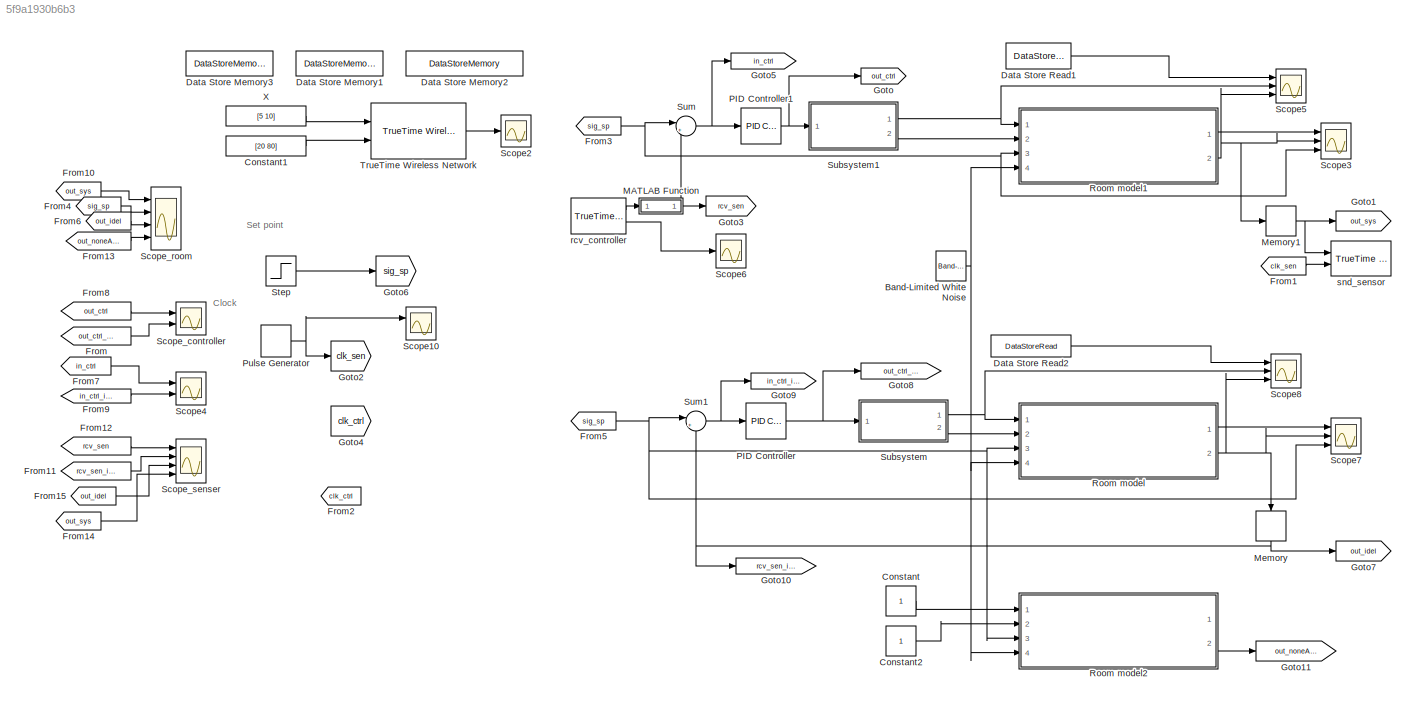
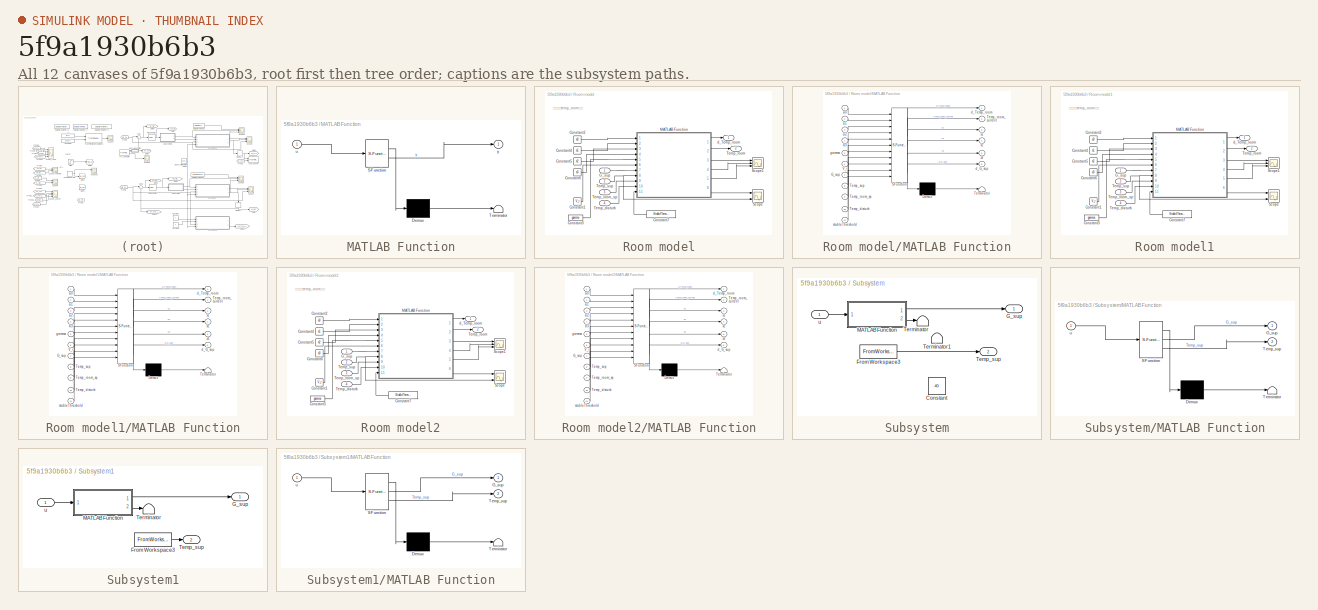
[diagram: thumbnail index - all 12 canvases of the model, root first then tree order]
MODEL slx_5f9a1930b6b3
KIND model
CONFIG AbsTol = auto
CONFIG EnableMultiTasking = off
CONFIG FixedStep = auto
CONFIG MaxStep = auto
CONFIG MinStep = auto
CONFIG RelTol = 1e-3
CONFIG SampleTimeConstraint = Unconstrained
CONFIG SolverName = VariableStepAuto
CONFIG StartTime = 0.0
CONFIG StopTime = 100
WORKSPACE source: mxarray member
WORKSPACE G_sup_tsp: Simulink.Signal (value not decoded)
WORKSPACE G_sup_tsp_ideal: Simulink.Signal (value not decoded)
WORKSPACE G_sup_tsp_noneAct: Simulink.Signal (value not decoded)
BLOCK [Reference] Band-Limited White Noise  REF=simulink/Sources/Band-Limited
White Noise
  Ports = [0, 1]
  SourceBlock = simulink/Sources/Band-Limited\nWhite Noise
  SourceProductBaseCode = SL
  SourceType = Band-Limited White Noise.
BLOCK [Constant] Constant
BLOCK [Constant] Constant1
  Value = [20 80]
  VectorParams1D = off
BLOCK [Constant] Constant2
BLOCK [DataStoreMemory] Data Store Memory1
  DataStoreName = G_sup_tsp_ideal
  InitialValue = 175
  OutDataTypeStr = double
  ReadBeforeWriteMsg = warning
  ShowAdditionalParam = off
  SignalType = real
  WriteAfterReadMsg = warning
  WriteAfterWriteMsg = warning
BLOCK [DataStoreMemory] Data Store Memory2
  DataStoreName = G_sup_tsp_noneAct
  InitialValue = 175
  OutDataTypeStr = double
  ReadBeforeWriteMsg = warning
  ShowAdditionalParam = off
  SignalType = real
  WriteAfterReadMsg = warning
  WriteAfterWriteMsg = warning
BLOCK [DataStoreMemory] Data Store Memory3
  DataStoreName = G_sup_tsp
  InitialValue = 175
  OutDataTypeStr = double
  ReadBeforeWriteMsg = warning
  ShowAdditionalParam = off
  SignalType = real
  WriteAfterReadMsg = warning
  WriteAfterWriteMsg = warning
BLOCK [DataStoreRead] Data Store Read1
  DataStoreName = G_sup_tsp
  Ports = [0, 1]
BLOCK [DataStoreRead] Data Store Read2
  DataStoreName = G_sup_tsp_ideal
  Ports = [0, 1]
BLOCK [From] From
  GotoTag = out_ctrl_ideal
BLOCK [From] From1
  GotoTag = clk_sen
BLOCK [From] From10
  GotoTag = out_sys
BLOCK [From] From11
  GotoTag = rcv_sen_ideal
BLOCK [From] From12
  GotoTag = rcv_sen
BLOCK [From] From13
  GotoTag = out_noneAct
BLOCK [From] From14
  GotoTag = out_sys
BLOCK [From] From15
  GotoTag = out_idel
BLOCK [From] From2
  GotoTag = clk_ctrl
BLOCK [From] From3
  GotoTag = sig_sp
BLOCK [From] From4
  GotoTag = sig_sp
BLOCK [From] From5
  GotoTag = sig_sp
BLOCK [From] From6
  GotoTag = out_idel
BLOCK [From] From7
  GotoTag = in_ctrl
BLOCK [From] From8
  GotoTag = out_ctrl
BLOCK [From] From9
  GotoTag = in_ctrl_idea
BLOCK [Goto] Goto
  GotoTag = out_ctrl
BLOCK [Goto] Goto1
  GotoTag = out_sys
BLOCK [Goto] Goto10
  GotoTag = rcv_sen_ideal
BLOCK [Goto] Goto11
  GotoTag = out_noneAct
BLOCK [Goto] Goto2
  GotoTag = clk_sen
BLOCK [Goto] Goto3
  GotoTag = rcv_sen
BLOCK [Goto] Goto4
  GotoTag = clk_ctrl
BLOCK [Goto] Goto5
  GotoTag = in_ctrl
BLOCK [Goto] Goto6
  GotoTag = sig_sp
BLOCK [Goto] Goto7
  GotoTag = out_idel
BLOCK [Goto] Goto8
  GotoTag = out_ctrl_ideal
BLOCK [Goto] Goto9
  GotoTag = in_ctrl_idea
BLOCK [SubSystem] MATLAB Function
  ErrorFcn = Stateflow.Translate.translate
  PermitHierarchicalResolution = ExplicitOnly
  Ports = [1, 1]
  RequestExecContextInheritance = off
  SFBlockType = MATLAB Function
  TreatAsAtomicUnit = on
BLOCK [Demux] MATLAB Function/ Demux 
  Outputs = 1
  Ports = [1, 1]
BLOCK [S-Function] MATLAB Function/ SFunction 
  EnableBusSupport = on
  FunctionName = sf_sfun
  PortCounts = [1 2]
  Ports = [1, 2]
  SFcnIsStateOwnerBlock = off
  SFunctionDeploymentMode = off
  Tag = Stateflow S-Function 5
BLOCK [Terminator] MATLAB Function/ Terminator 
BLOCK [Inport] MATLAB Function/u
BLOCK [Outport] MATLAB Function/y
BLOCK [Memory] Memory
  InitialCondition = 21
  NameLocation = left
BLOCK [Memory] Memory1
  InitialCondition = 21
BLOCK [Reference] PID Controller  REF=pid_lib/PID Controller
  Ports = [1, 1]
  SourceBlock = pid_lib/PID Controller
  SourceProductBaseCode = SL
  SourceType = PID 1dof
BLOCK [Reference] PID Controller1  REF=pid_lib/PID Controller
  Ports = [1, 1]
  SourceBlock = pid_lib/PID Controller
  SourceProductBaseCode = SL
  SourceType = PID 1dof
BLOCK [DiscretePulseGenerator] Pulse Generator
  Period = 5
  Ports = [0, 1]
BLOCK [SubSystem] Room model
  Ports = [4, 2]
  RequestExecContextInheritance = off
BLOCK [Constant] Room model/Constant1
  Value = V_r
BLOCK [Constant] Room model/Constant2
  Value = a0
BLOCK [Constant] Room model/Constant3
  Value = gamma
BLOCK [Constant] Room model/Constant4
  Value = a1
BLOCK [Constant] Room model/Constant5
  Value = a2
BLOCK [Constant] Room model/Constant6
  Value = a3
BLOCK [Constant] Room model/Constant7
  Value = StableThreshold
BLOCK [Inport] Room model/G_sup
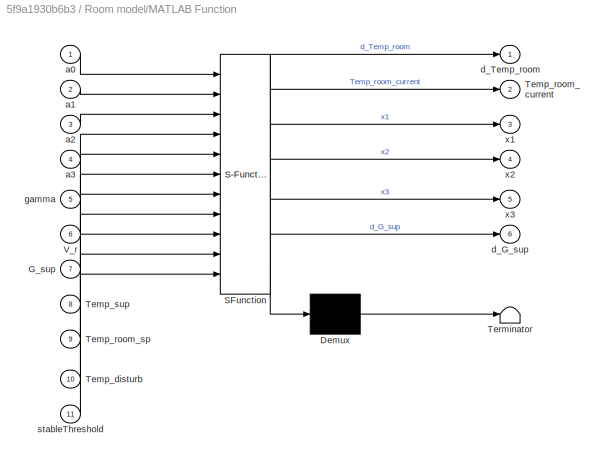
BLOCK [SubSystem] Room model/MATLAB Function
  ErrorFcn = Stateflow.Translate.translate
  PermitHierarchicalResolution = ExplicitOnly
  Ports = [11, 6]
  RequestExecContextInheritance = off
  SFBlockType = MATLAB Function
  TreatAsAtomicUnit = on
BLOCK [Demux] Room model/MATLAB Function/ Demux 
  Outputs = 1
  Ports = [1, 1]
BLOCK [S-Function] Room model/MATLAB Function/ SFunction 
  EnableBusSupport = on
  FunctionName = sf_sfun
  PortCounts = [11 7]
  Ports = [11, 7]
  SFcnIsStateOwnerBlock = off
  SFunctionDeploymentMode = off
  Tag = Stateflow S-Function 3
BLOCK [Terminator] Room model/MATLAB Function/ Terminator 
BLOCK [Inport] Room model/MATLAB Function/G_sup
  Port = 7
BLOCK [Inport] Room model/MATLAB Function/Temp_disturb
  Port = 10
BLOCK [Outport] Room model/MATLAB Function/Temp_room_current
  Port = 2
BLOCK [Inport] Room model/MATLAB Function/Temp_room_sp
  Port = 9
BLOCK [Inport] Room model/MATLAB Function/Temp_sup
  Port = 8
BLOCK [Inport] Room model/MATLAB Function/V_r
  Port = 6
BLOCK [Inport] Room model/MATLAB Function/a0
BLOCK [Inport] Room model/MATLAB Function/a1
  Port = 2
BLOCK [Inport] Room model/MATLAB Function/a2
  Port = 3
BLOCK [Inport] Room model/MATLAB Function/a3
  Port = 4
BLOCK [Outport] Room model/MATLAB Function/d_G_sup
  Port = 6
BLOCK [Outport] Room model/MATLAB Function/d_Temp_room
BLOCK [Inport] Room model/MATLAB Function/gamma
  Port = 5
BLOCK [Inport] Room model/MATLAB Function/stableThreshold
  Port = 11
BLOCK [Outport] Room model/MATLAB Function/x1
  Port = 3
BLOCK [Outport] Room model/MATLAB Function/x2
  Port = 4
BLOCK [Outport] Room model/MATLAB Function/x3
  Port = 5
BLOCK [Scope] Room model/Scope
  Floating = off
  NumInputPorts = 3
  Ports = [3]
  ScopeSpecificationString = Simulink.scopes.TimeScopeBlockCfg('CurrentConfiguration', extmgr.ConfigurationSet(extmgr.Configuration('Core','General UI',true),extmgr.Configuration('Core','Source UI',true),extmgr.Configuration('Sources','WiredSimulink',true,'DataLoggingVariableName','ScopeData2'),extmgr.Configuration('Visuals','Time Domain',true,'SerializedDisplays',{struct('MinYLimReal','-336.25','MaxYLimReal','3026.25','YLabe...<+2837ch>  <repeated x3 — deduplicated; at blocks: Scope>
BLOCK [Scope] Room model/Scope1
  Floating = off
  NumInputPorts = 3
  Ports = [3]
  ScopeSpecificationString = Simulink.scopes.TimeScopeBlockCfg('CurrentConfiguration', extmgr.ConfigurationSet(extmgr.Configuration('Core','General UI',true),extmgr.Configuration('Core','Source UI',true),extmgr.Configuration('Sources','WiredSimulink',true,'DataLoggingVariableName','ScopeData3'),extmgr.Configuration('Visuals','Time Domain',true,'SerializedDisplays',{struct('MinYLimReal','-5.69038','MaxYLimReal','1.98649','YLab...<+3174ch>  <repeated x3 — deduplicated; at blocks: Scope1>
BLOCK [Inport] Room model/Temp_disturb
  Port = 4
BLOCK [Outport] Room model/Temp_room
  Port = 2
BLOCK [Inport] Room model/Temp_room_sp
  Port = 3
BLOCK [Inport] Room model/Temp_sup
  Port = 2
BLOCK [Outport] Room model/d_Temp_room
BLOCK [SubSystem] Room model1
  Ports = [4, 2]
  RequestExecContextInheritance = off
BLOCK [Constant] Room model1/Constant1
  Value = V_r
BLOCK [Constant] Room model1/Constant2
  Value = a0
BLOCK [Constant] Room model1/Constant3
  Value = gamma
BLOCK [Constant] Room model1/Constant4
  Value = a1
BLOCK [Constant] Room model1/Constant5
  Value = a2
BLOCK [Constant] Room model1/Constant6
  Value = a3
BLOCK [Constant] Room model1/Constant7
  Value = StableThreshold
BLOCK [Inport] Room model1/G_sup
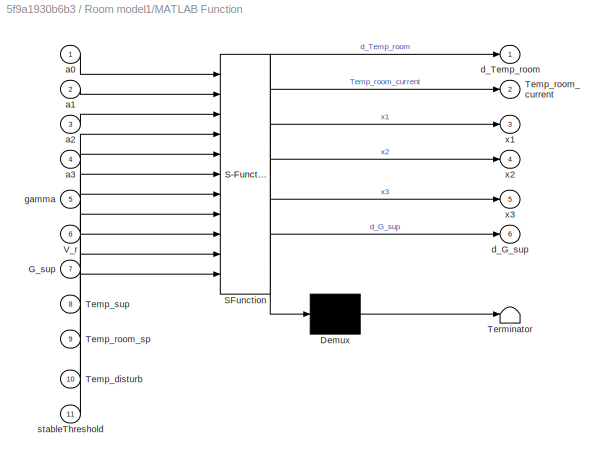
BLOCK [SubSystem] Room model1/MATLAB Function
  ErrorFcn = Stateflow.Translate.translate
  PermitHierarchicalResolution = ExplicitOnly
  Ports = [11, 6]
  RequestExecContextInheritance = off
  SFBlockType = MATLAB Function
  TreatAsAtomicUnit = on
BLOCK [Demux] Room model1/MATLAB Function/ Demux 
  Outputs = 1
  Ports = [1, 1]
BLOCK [S-Function] Room model1/MATLAB Function/ SFunction 
  EnableBusSupport = on
  FunctionName = sf_sfun
  PortCounts = [11 7]
  Ports = [11, 7]
  SFcnIsStateOwnerBlock = off
  SFunctionDeploymentMode = off
  Tag = Stateflow S-Function 2
BLOCK [Terminator] Room model1/MATLAB Function/ Terminator 
BLOCK [Inport] Room model1/MATLAB Function/G_sup
  Port = 7
BLOCK [Inport] Room model1/MATLAB Function/Temp_disturb
  Port = 10
BLOCK [Outport] Room model1/MATLAB Function/Temp_room_current
  Port = 2
BLOCK [Inport] Room model1/MATLAB Function/Temp_room_sp
  Port = 9
BLOCK [Inport] Room model1/MATLAB Function/Temp_sup
  Port = 8
BLOCK [Inport] Room model1/MATLAB Function/V_r
  Port = 6
BLOCK [Inport] Room model1/MATLAB Function/a0
BLOCK [Inport] Room model1/MATLAB Function/a1
  Port = 2
BLOCK [Inport] Room model1/MATLAB Function/a2
  Port = 3
BLOCK [Inport] Room model1/MATLAB Function/a3
  Port = 4
BLOCK [Outport] Room model1/MATLAB Function/d_G_sup
  Port = 6
BLOCK [Outport] Room model1/MATLAB Function/d_Temp_room
BLOCK [Inport] Room model1/MATLAB Function/gamma
  Port = 5
BLOCK [Inport] Room model1/MATLAB Function/stableThreshold
  Port = 11
BLOCK [Outport] Room model1/MATLAB Function/x1
  Port = 3
BLOCK [Outport] Room model1/MATLAB Function/x2
  Port = 4
BLOCK [Outport] Room model1/MATLAB Function/x3
  Port = 5
BLOCK [Scope] Room model1/Scope
  Floating = off
  NumInputPorts = 3
  Ports = [3]
BLOCK [Scope] Room model1/Scope1
  Floating = off
  NumInputPorts = 3
  Ports = [3]
BLOCK [Inport] Room model1/Temp_disturb
  Port = 4
BLOCK [Outport] Room model1/Temp_room
  Port = 2
BLOCK [Inport] Room model1/Temp_room_sp
  Port = 3
BLOCK [Inport] Room model1/Temp_sup
  Port = 2
BLOCK [Outport] Room model1/d_Temp_room
BLOCK [SubSystem] Room model2
  Ports = [4, 2]
  RequestExecContextInheritance = off
BLOCK [Constant] Room model2/Constant1
  Value = V_r
BLOCK [Constant] Room model2/Constant2
  Value = a0
BLOCK [Constant] Room model2/Constant3
  Value = gamma
BLOCK [Constant] Room model2/Constant4
  Value = a1
BLOCK [Constant] Room model2/Constant5
  Value = a2
BLOCK [Constant] Room model2/Constant6
  Value = a3
BLOCK [Constant] Room model2/Constant7
  Value = StableThreshold
BLOCK [Inport] Room model2/G_sup
BLOCK [SubSystem] Room model2/MATLAB Function
  ErrorFcn = Stateflow.Translate.translate
  PermitHierarchicalResolution = ExplicitOnly
  Ports = [11, 6]
  RequestExecContextInheritance = off
  SFBlockType = MATLAB Function
  TreatAsAtomicUnit = on
BLOCK [Demux] Room model2/MATLAB Function/ Demux 
  Outputs = 1
  Ports = [1, 1]
BLOCK [S-Function] Room model2/MATLAB Function/ SFunction 
  EnableBusSupport = on
  FunctionName = sf_sfun
  PortCounts = [11 7]
  Ports = [11, 7]
  SFcnIsStateOwnerBlock = off
  SFunctionDeploymentMode = off
  Tag = Stateflow S-Function 6
BLOCK [Terminator] Room model2/MATLAB Function/ Terminator 
BLOCK [Inport] Room model2/MATLAB Function/G_sup
  Port = 7
BLOCK [Inport] Room model2/MATLAB Function/Temp_disturb
  Port = 10
BLOCK [Outport] Room model2/MATLAB Function/Temp_room_current
  Port = 2
BLOCK [Inport] Room model2/MATLAB Function/Temp_room_sp
  Port = 9
BLOCK [Inport] Room model2/MATLAB Function/Temp_sup
  Port = 8
BLOCK [Inport] Room model2/MATLAB Function/V_r
  Port = 6
BLOCK [Inport] Room model2/MATLAB Function/a0
BLOCK [Inport] Room model2/MATLAB Function/a1
  Port = 2
BLOCK [Inport] Room model2/MATLAB Function/a2
  Port = 3
BLOCK [Inport] Room model2/MATLAB Function/a3
  Port = 4
BLOCK [Outport] Room model2/MATLAB Function/d_G_sup
  Port = 6
BLOCK [Outport] Room model2/MATLAB Function/d_Temp_room
BLOCK [Inport] Room model2/MATLAB Function/gamma
  Port = 5
BLOCK [Inport] Room model2/MATLAB Function/stableThreshold
  Port = 11
BLOCK [Outport] Room model2/MATLAB Function/x1
  Port = 3
BLOCK [Outport] Room model2/MATLAB Function/x2
  Port = 4
BLOCK [Outport] Room model2/MATLAB Function/x3
  Port = 5
BLOCK [Scope] Room model2/Scope
  Floating = off
  NumInputPorts = 3
  Ports = [3]
BLOCK [Scope] Room model2/Scope1
  Floating = off
  NumInputPorts = 3
  Ports = [3]
BLOCK [Inport] Room model2/Temp_disturb
  Port = 4
BLOCK [Outport] Room model2/Temp_room
  Port = 2
BLOCK [Inport] Room model2/Temp_room_sp
  Port = 3
BLOCK [Inport] Room model2/Temp_sup
  Port = 2
BLOCK [Outport] Room model2/d_Temp_room
BLOCK [Scope] Scope10
  Floating = off
  NumInputPorts = 2
  Ports = [2]
  ScopeSpecificationString = Simulink.scopes.TimeScopeBlockCfg('CurrentConfiguration', extmgr.ConfigurationSet(extmgr.Configuration('Core','General UI',true),extmgr.Configuration('Core','Source UI',true),extmgr.Configuration('Sources','WiredSimulink',true,'DataLoggingVariableName','ScopeData11'),extmgr.Configuration('Visuals','Time Domain',true,'SerializedDisplays',{struct('MinYLimReal','-0.125','MaxYLimReal','1.125','YLabelR...<+1568ch>
BLOCK [Scope] Scope2
  Floating = off
  NumInputPorts = 1
  Ports = [1]
  ScopeSpecificationString = Simulink.scopes.TimeScopeBlockCfg('CurrentConfiguration', extmgr.ConfigurationSet(extmgr.Configuration('Core','General UI',true),extmgr.Configuration('Core','Source UI',true),extmgr.Configuration('Sources','WiredSimulink',true,'DataLoggingVariableName','ScopeData3'),extmgr.Configuration('Visuals','Time Domain',true,'SerializedDisplays',{struct('MinYLimReal','0.8125','MaxYLimReal','2.6875','YLabelR...<+1540ch>
BLOCK [Scope] Scope3
  Floating = off
  NumInputPorts = 3
  Ports = [3]
  ScopeSpecificationString = Simulink.scopes.TimeScopeBlockCfg('CurrentConfiguration', extmgr.ConfigurationSet(extmgr.Configuration('Core','General UI',true),extmgr.Configuration('Core','Source UI',true),extmgr.Configuration('Sources','WiredSimulink',true,'DataLoggingVariableName','ScopeData8'),extmgr.Configuration('Visuals','Time Domain',true,'SerializedDisplays',{struct('MinYLimReal','-0.36651','MaxYLimReal','0.61474','YLab...<+2039ch>
BLOCK [Scope] Scope4
  Floating = off
  NumInputPorts = 2
  Ports = [2]
  ScopeSpecificationString = Simulink.scopes.TimeScopeBlockCfg('CurrentConfiguration', extmgr.ConfigurationSet(extmgr.Configuration('Core','General UI',true),extmgr.Configuration('Core','Source UI',true),extmgr.Configuration('Sources','WiredSimulink',true,'DataLoggingVariableName','ScopeData7'),extmgr.Configuration('Visuals','Time Domain',true,'SerializedDisplays',{struct('MinYLimReal','-1.18166','MaxYLimReal','2.35352','YLab...<+1497ch>
BLOCK [Scope] Scope5
  Floating = off
  NumInputPorts = 3
  Ports = [3]
  ScopeSpecificationString = Simulink.scopes.TimeScopeBlockCfg('CurrentConfiguration', extmgr.ConfigurationSet(extmgr.Configuration('Core','General UI',true),extmgr.Configuration('Core','Source UI',true),extmgr.Configuration('Sources','WiredSimulink',true,'DataLoggingVariableName','ScopeData9'),extmgr.Configuration('Visuals','Time Domain',true,'SerializedDisplays',{struct('MinYLimReal','44.90215','MaxYLimReal','1345.88065','Y...<+2826ch>
BLOCK [Scope] Scope6
  Floating = off
  NumInputPorts = 1
  Ports = [1]
  ScopeSpecificationString = Simulink.scopes.TimeScopeBlockCfg('CurrentConfiguration', extmgr.ConfigurationSet(extmgr.Configuration('Core','General UI',true),extmgr.Configuration('Core','Source UI',true),extmgr.Configuration('Sources','WiredSimulink',true,'DataLoggingVariableName','ScopeData4'),extmgr.Configuration('Visuals','Time Domain',true,'SerializedDisplays',{struct('MinYLimReal','-1.25','MaxYLimReal','1.25','YLabelReal...<+1456ch>
BLOCK [Scope] Scope7
  Floating = off
  NumInputPorts = 3
  Ports = [3]
  ScopeSpecificationString = Simulink.scopes.TimeScopeBlockCfg('CurrentConfiguration', extmgr.ConfigurationSet(extmgr.Configuration('Core','General UI',true),extmgr.Configuration('Core','Source UI',true),extmgr.Configuration('Sources','WiredSimulink',true,'DataLoggingVariableName','ScopeData1'),extmgr.Configuration('Visuals','Time Domain',true,'SerializedDisplays',{struct('MinYLimReal','-0.4515','MaxYLimReal','1.36522','YLabe...<+2035ch>
BLOCK [Scope] Scope8
  Floating = off
  NumInputPorts = 3
  Ports = [3]
  ScopeSpecificationString = Simulink.scopes.TimeScopeBlockCfg('CurrentConfiguration', extmgr.ConfigurationSet(extmgr.Configuration('Core','General UI',true),extmgr.Configuration('Core','Source UI',true),extmgr.Configuration('Sources','WiredSimulink',true,'DataLoggingVariableName','ScopeData2'),extmgr.Configuration('Visuals','Time Domain',true,'SerializedDisplays',{struct('MinYLimReal','49.07812','MaxYLimReal','558.29694','YL...<+2817ch>
BLOCK [Scope] Scope_controller
  Floating = off
  NumInputPorts = 2
  Ports = [2]
  ScopeSpecificationString = Simulink.scopes.TimeScopeBlockCfg('CurrentConfiguration', extmgr.ConfigurationSet(extmgr.Configuration('Core','General UI',true),extmgr.Configuration('Core','Source UI',true),extmgr.Configuration('Sources','WiredSimulink',true,'DataLoggingVariableName','ScopeData6'),extmgr.Configuration('Visuals','Time Domain',true,'SerializedDisplays',{struct('MinYLimReal','869.46486','MaxYLimReal','1275.5249','Y...<+1476ch>
BLOCK [Scope] Scope_room
  Floating = off
  NumInputPorts = 4
  Ports = [4]
  ScopeSpecificationString = Simulink.scopes.TimeScopeBlockCfg('CurrentConfiguration', extmgr.ConfigurationSet(extmgr.Configuration('Core','General UI',true),extmgr.Configuration('Core','Source UI',true),extmgr.Configuration('Sources','WiredSimulink',true,'DataLoggingVariableName','ScopeData5','DataLogging',true),extmgr.Configuration('Visuals','Time Domain',true,'SerializedDisplays',{struct('MinYLimReal','20.40201','MaxYLimRe...<+1673ch>
BLOCK [Scope] Scope_senser
  Floating = off
  NumInputPorts = 4
  Ports = [4]
  ScopeSpecificationString = Simulink.scopes.TimeScopeBlockCfg('CurrentConfiguration', extmgr.ConfigurationSet(extmgr.Configuration('Core','General UI',true),extmgr.Configuration('Core','Source UI',true),extmgr.Configuration('Sources','WiredSimulink',true,'DataLoggingVariableName','ScopeData10'),extmgr.Configuration('Visuals','Time Domain',true,'SerializedDisplays',{struct('MinYLimReal','20.40201','MaxYLimReal','25.32983','YL...<+1547ch>
BLOCK [Step] Step
  After = 23
  Before = 23
  Time = 5
BLOCK [SubSystem] Subsystem
  Ports = [1, 2]
  RequestExecContextInheritance = off
BLOCK [Constant] Subsystem/Constant
  Value = 40
BLOCK [FromWorkspace] Subsystem/From Workspace3
  SampleTime = 1
  VariableName = testData(:,[1,2])
BLOCK [Outport] Subsystem/G_sup
BLOCK [SubSystem] Subsystem/MATLAB Function
  ErrorFcn = Stateflow.Translate.translate
  PermitHierarchicalResolution = ExplicitOnly
  Ports = [1, 2]
  RequestExecContextInheritance = off
  SFBlockType = MATLAB Function
  TreatAsAtomicUnit = on
BLOCK [Demux] Subsystem/MATLAB Function/ Demux 
  Outputs = 1
  Ports = [1, 1]
BLOCK [S-Function] Subsystem/MATLAB Function/ SFunction 
  EnableBusSupport = on
  FunctionName = sf_sfun
  PortCounts = [1 3]
  Ports = [1, 3]
  SFcnIsStateOwnerBlock = off
  SFunctionDeploymentMode = off
  Tag = Stateflow S-Function 1
BLOCK [Terminator] Subsystem/MATLAB Function/ Terminator 
BLOCK [Outport] Subsystem/MATLAB Function/G_sup
BLOCK [Outport] Subsystem/MATLAB Function/Temp_sup
  Port = 2
BLOCK [Inport] Subsystem/MATLAB Function/u
BLOCK [Outport] Subsystem/Temp_sup
  Port = 2
BLOCK [Terminator] Subsystem/Terminator
BLOCK [Terminator] Subsystem/Terminator1
BLOCK [Inport] Subsystem/u
BLOCK [SubSystem] Subsystem1
  Ports = [1, 2]
  RequestExecContextInheritance = off
BLOCK [FromWorkspace] Subsystem1/From Workspace3
  SampleTime = 1
  VariableName = testData(:,[1,2])
BLOCK [Outport] Subsystem1/G_sup
BLOCK [SubSystem] Subsystem1/MATLAB Function
  ErrorFcn = Stateflow.Translate.translate
  PermitHierarchicalResolution = ExplicitOnly
  Ports = [1, 2]
  RequestExecContextInheritance = off
  SFBlockType = MATLAB Function
  TreatAsAtomicUnit = on
BLOCK [Demux] Subsystem1/MATLAB Function/ Demux 
  Outputs = 1
  Ports = [1, 1]
BLOCK [S-Function] Subsystem1/MATLAB Function/ SFunction 
  EnableBusSupport = on
  FunctionName = sf_sfun
  PortCounts = [1 3]
  Ports = [1, 3]
  SFcnIsStateOwnerBlock = off
  SFunctionDeploymentMode = off
  Tag = Stateflow S-Function 4
BLOCK [Terminator] Subsystem1/MATLAB Function/ Terminator 
BLOCK [Outport] Subsystem1/MATLAB Function/G_sup
BLOCK [Outport] Subsystem1/MATLAB Function/Temp_sup
  Port = 2
BLOCK [Inport] Subsystem1/MATLAB Function/u
BLOCK [Outport] Subsystem1/Temp_sup
  Port = 2
BLOCK [Terminator] Subsystem1/Terminator
BLOCK [Inport] Subsystem1/u
BLOCK [Sum] Sum
  Inputs = |+-
  Ports = [2, 1]
BLOCK [Sum] Sum1
  Inputs = |+-
  Ports = [2, 1]
BLOCK [Reference] TrueTime Wireless Network  REF=truetime/TrueTime Wireless   (lib defined in slx_0362a698a4ec)
Network
  Ports = [2, 1]
  SourceBlock = truetime/TrueTime Wireless \nNetwork
  SourceType = Wireless Network
BLOCK [Constant] X
  Value = [5 10]
  VectorParams1D = off
BLOCK [Reference] rcv_controller  REF=truetime/TrueTime Receive  (lib defined in slx_0362a698a4ec)
  Ports = [0, 2]
  SourceBlock = truetime/TrueTime Receive
BLOCK [Reference] snd_sensor  REF=truetime/TrueTime Send  (lib defined in slx_0362a698a4ec)
  Ports = [2]
  SourceBlock = truetime/TrueTime Send
ANNOTATION (root): Clock
ANNOTATION (root): Set point
ANNOTATION Room model: 内部带有temp_room更新
ANNOTATION Room model1: 内部带有temp_room更新
ANNOTATION Room model2: 内部带有temp_room更新
NET Band-Limited White Noise:1 -> Room model1:4, Room model2:4, Room model:4
LINE Constant1:1 -> TrueTime Wireless Network:2
LINE Constant2:1 -> Room model2:2
LINE Constant:1 -> Room model2:1
LINE Data Store Read1:1 -> Scope5:1
LINE Data Store Read2:1 -> Scope8:1
LINE From10:1 -> Scope_room:1
LINE From11:1 -> Scope_senser:2
LINE From12:1 -> Scope_senser:1
LINE From13:1 -> Scope_room:4
LINE From14:1 -> Scope_senser:4
LINE From15:1 -> Scope_senser:3
LINE From1:1 -> snd_sensor:2
NET From3:1 -> Room model1:3, Scope3:3, Sum:1
LINE From4:1 -> Scope_room:2
NET From5:1 -> Room model2:3, Room model:3, Scope7:3, Sum1:1
LINE From6:1 -> Scope_room:3
LINE From7:1 -> Scope4:1
LINE From8:1 -> Scope_controller:1
LINE From9:1 -> Scope4:2
LINE From:1 -> Scope_controller:2
NET MATLAB Function:1 -> Goto3:1, Sum:2
NET Memory1:1 -> Goto1:1, snd_sensor:1
NET Memory:1 -> Goto10:1, Goto7:1, Sum1:2
NET PID Controller1:1 -> Goto:1, Subsystem1:1
NET PID Controller:1 -> Goto8:1, Subsystem:1
NET Pulse Generator:1 -> Goto2:1, Scope10:1
LINE Room model/Constant1:1 -> Room model/MATLAB Function:6
LINE Room model/Constant2:1 -> Room model/MATLAB Function:1
LINE Room model/Constant3:1 -> Room model/MATLAB Function:5
LINE Room model/Constant4:1 -> Room model/MATLAB Function:2
LINE Room model/Constant5:1 -> Room model/MATLAB Function:3
LINE Room model/Constant6:1 -> Room model/MATLAB Function:4
LINE Room model/Constant7:1 -> Room model/MATLAB Function:11
LINE Room model/G_sup:1 -> Room model/MATLAB Function:7
LINE Room model/MATLAB Function:1 -> Room model/d_Temp_room:1
LINE Room model/MATLAB Function:2 -> Room model/Temp_room:1
LINE Room model/MATLAB Function:3 -> Room model/Scope1:1
LINE Room model/MATLAB Function:4 -> Room model/Scope1:2
LINE Room model/MATLAB Function:5 -> Room model/Scope1:3
LINE Room model/MATLAB Function:6 -> Room model/Scope:1
LINE Room model/Temp_disturb:1 -> Room model/MATLAB Function:10
LINE Room model/Temp_room_sp:1 -> Room model/MATLAB Function:9
NET Room model/Temp_sup:1 -> Room model/MATLAB Function:8, Room model/Scope:3
LINE Room model1/Constant1:1 -> Room model1/MATLAB Function:6
LINE Room model1/Constant2:1 -> Room model1/MATLAB Function:1
LINE Room model1/Constant3:1 -> Room model1/MATLAB Function:5
LINE Room model1/Constant4:1 -> Room model1/MATLAB Function:2
LINE Room model1/Constant5:1 -> Room model1/MATLAB Function:3
LINE Room model1/Constant6:1 -> Room model1/MATLAB Function:4
LINE Room model1/Constant7:1 -> Room model1/MATLAB Function:11
LINE Room model1/G_sup:1 -> Room model1/MATLAB Function:7
LINE Room model1/MATLAB Function:1 -> Room model1/d_Temp_room:1
LINE Room model1/MATLAB Function:2 -> Room model1/Temp_room:1
LINE Room model1/MATLAB Function:3 -> Room model1/Scope1:1
LINE Room model1/MATLAB Function:4 -> Room model1/Scope1:2
LINE Room model1/MATLAB Function:5 -> Room model1/Scope1:3
LINE Room model1/MATLAB Function:6 -> Room model1/Scope:1
LINE Room model1/Temp_disturb:1 -> Room model1/MATLAB Function:10
LINE Room model1/Temp_room_sp:1 -> Room model1/MATLAB Function:9
NET Room model1/Temp_sup:1 -> Room model1/MATLAB Function:8, Room model1/Scope:3
LINE Room model1:1 -> Scope3:1
NET Room model1:2 -> Memory1:1, Scope3:2, Scope5:3
LINE Room model2/Constant1:1 -> Room model2/MATLAB Function:6
LINE Room model2/Constant2:1 -> Room model2/MATLAB Function:1
LINE Room model2/Constant3:1 -> Room model2/MATLAB Function:5
LINE Room model2/Constant4:1 -> Room model2/MATLAB Function:2
LINE Room model2/Constant5:1 -> Room model2/MATLAB Function:3
LINE Room model2/Constant6:1 -> Room model2/MATLAB Function:4
LINE Room model2/Constant7:1 -> Room model2/MATLAB Function:11
LINE Room model2/G_sup:1 -> Room model2/MATLAB Function:7
LINE Room model2/MATLAB Function:1 -> Room model2/d_Temp_room:1
LINE Room model2/MATLAB Function:2 -> Room model2/Temp_room:1
LINE Room model2/MATLAB Function:3 -> Room model2/Scope1:1
LINE Room model2/MATLAB Function:4 -> Room model2/Scope1:2
LINE Room model2/MATLAB Function:5 -> Room model2/Scope1:3
LINE Room model2/MATLAB Function:6 -> Room model2/Scope:1
LINE Room model2/Temp_disturb:1 -> Room model2/MATLAB Function:10
LINE Room model2/Temp_room_sp:1 -> Room model2/MATLAB Function:9
NET Room model2/Temp_sup:1 -> Room model2/MATLAB Function:8, Room model2/Scope:3
LINE Room model2:2 -> Goto11:1
LINE Room model:1 -> Scope7:1
NET Room model:2 -> Memory:1, Scope7:2, Scope8:3
LINE Step:1 -> Goto6:1
LINE Subsystem/From Workspace3:1 -> Subsystem/Temp_sup:1
LINE Subsystem/MATLAB Function:1 -> Subsystem/G_sup:1
LINE Subsystem/MATLAB Function:2 -> Subsystem/Terminator:1
LINE Subsystem/u:1 -> Subsystem/MATLAB Function:1
LINE Subsystem1/From Workspace3:1 -> Subsystem1/Temp_sup:1
LINE Subsystem1/MATLAB Function:1 -> Subsystem1/G_sup:1
LINE Subsystem1/MATLAB Function:2 -> Subsystem1/Terminator:1
LINE Subsystem1/u:1 -> Subsystem1/MATLAB Function:1
NET Subsystem1:1 -> Room model1:1, Scope5:2
LINE Subsystem1:2 -> Room model1:2
NET Subsystem:1 -> Room model:1, Scope8:2
LINE Subsystem:2 -> Room model:2
NET Sum1:1 -> Goto9:1, PID Controller:1
NET Sum:1 -> Goto5:1, PID Controller1:1
LINE TrueTime Wireless Network:1 -> Scope2:1
LINE X:1 -> TrueTime Wireless Network:1
LINE rcv_controller:1 -> MATLAB Function:1
LINE rcv_controller:2 -> Scope6:1
note: NET lines group one-source signal fan-out (src -> all destinations, sorted); 1:1 wires keep LINE
CHART Subsystem/MATLAB Function states=1 transitions=1
  STATE_LABEL 'eML_blk_kernel()'
  STATE_LABEL 'SCRIPT:\nfunction [G_sup,Temp_sup] = fcn(u)\n\npersistent G;\nif(isempty(G))\n    G=800;\nend\n\n\nd_G_sup=u-G;\nG_sup=u;\nG=u;\n\nTemp_sup=40;'
CHART Room model1/MATLAB Function states=1 transitions=1
  STATE_LABEL 'eML_blk_kernel()'
  STATE_LABEL 'SCRIPT:\n\nfunction [d_Temp_room,Temp_room_current,x1,x2,x3,d_G_sup] = fcn(a0,a1,a2,a3,gamma,V_r,G_sup,Temp_sup,Temp_room_sp,Temp_disturb,stableThreshold)\n\npersistent Temp_room_buffer;\npersistent BufferCount;\npersistent Temp_room;\npersistent G;\nglobal G_sup_tsp;\n\n% 对静态变量初始化\nif(isempty(Temp_room_buffer))\n   Temp_room_buffer= [22.1000   21.8000   21.5000   21.2000   21.0000];\nend\n\nif(isempty(Temp_room...<+747ch>'
CHART Room model/MATLAB Function states=1 transitions=1
  STATE_LABEL 'eML_blk_kernel()'
  STATE_LABEL 'SCRIPT:\n\nfunction [d_Temp_room,Temp_room_current,x1,x2,x3,d_G_sup] = fcn(a0,a1,a2,a3,gamma,V_r,G_sup,Temp_sup,Temp_room_sp,Temp_disturb,stableThreshold)\n\npersistent Temp_room_buffer;\npersistent BufferCount;\npersistent Temp_room;\npersistent G;\nglobal G_sup_tsp_ideal;\n\n% 对静态变量初始化\nif(isempty(Temp_room_buffer))\n   Temp_room_buffer= [22.1000   21.8000   21.5000   21.2000   21.0000];\nend\n\nif(isempty(Tem...<+777ch>'
CHART Subsystem1/MATLAB Function states=1 transitions=1
  STATE_LABEL 'eML_blk_kernel()'
  STATE_LABEL 'SCRIPT:\nfunction [G_sup,Temp_sup] = fcn(u)\n\npersistent G;\nif(isempty(G))\n    G=800;\nend\n\n\nd_G_sup=u-G;\nG_sup=u;\nG=u;\n\nTemp_sup=40;'
CHART MATLAB Function states=1 transitions=1
  STATE_LABEL 'eML_blk_kernel()'
  STATE_LABEL 'SCRIPT:\nfunction y = initialHolder(u)\npersistent u0;\nif(isempty(u0))\n    u0=21;\nend\n\nif(u==0)\n    y=u0;\nelse\n    y = u;\n    u0=u;\nend\n'
CHART Room model2/MATLAB Function states=1 transitions=1
  STATE_LABEL 'eML_blk_kernel()'
  STATE_LABEL 'SCRIPT:\n\nfunction [d_Temp_room,Temp_room_current,x1,x2,x3,d_G_sup] = fcn(a0,a1,a2,a3,gamma,V_r,G_sup,Temp_sup,Temp_room_sp,Temp_disturb,stableThreshold)\n\npersistent Temp_room_buffer;\npersistent BufferCount;\npersistent Temp_room;\npersistent G;\nglobal G_sup_tsp_noneAct;\n\n% 对静态变量初始化\nif(isempty(Temp_room_buffer))\n   Temp_room_buffer= [22.1000   21.8000   21.5000   21.2000   21.0000];\nend\n\nif(isempty(T...<+787ch>'
CHART  states=0 transitions=0
CHART  states=0 transitions=0
CHART  states=0 transitions=0
CHART  states=0 transitions=0
CHART  states=0 transitions=0
CHART  states=0 transitions=0
